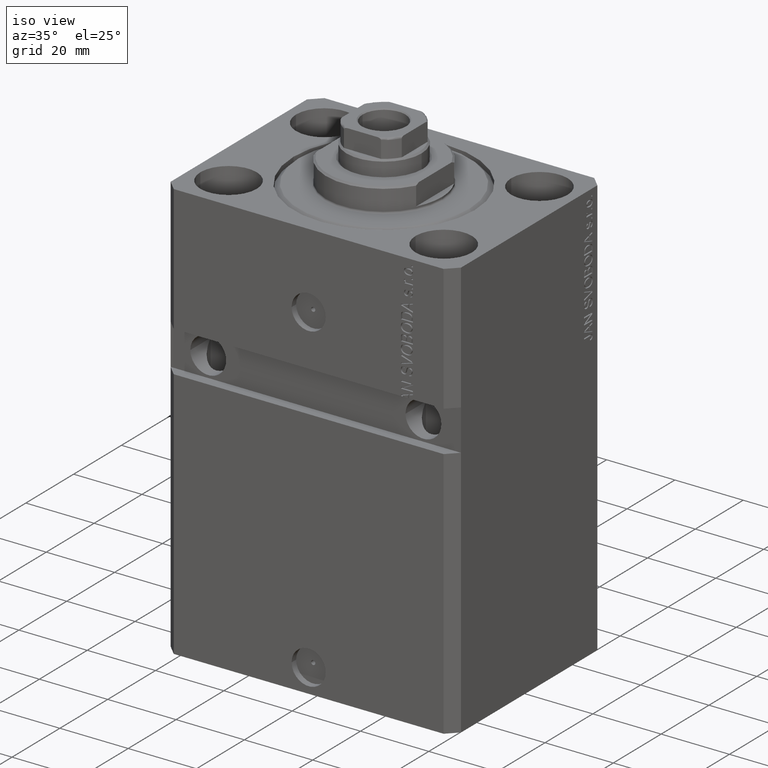
[diagram: clean part render]
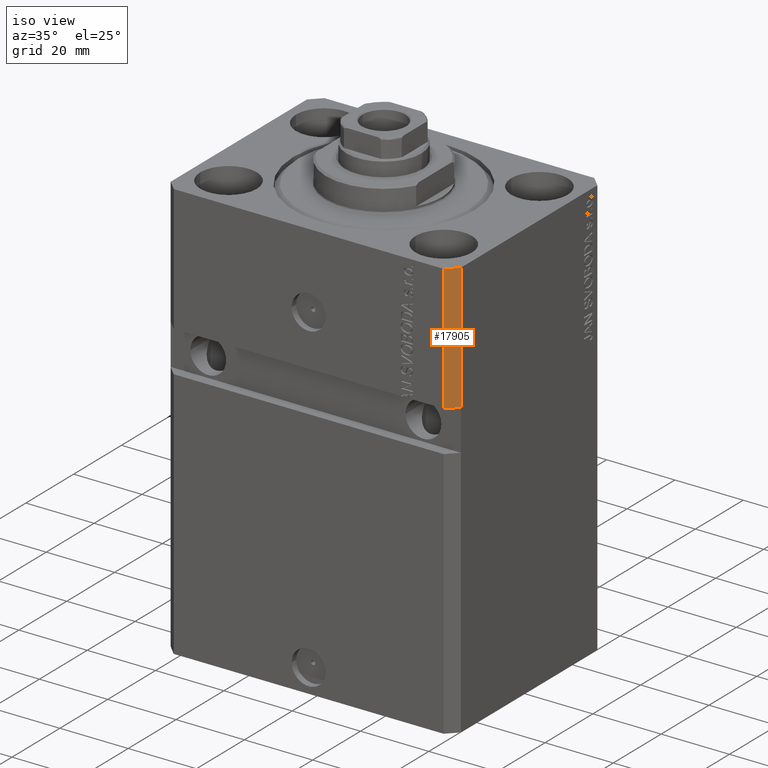
[diagram: same view with one face highlighted and labeled with its STEP entity id]
A machine part, iso view. The second image highlights one B-rep face of the part: STEP entity #17905.
In plain terms, the highlighted planar face has unit normal (0.7071, -0.7071, 0).
Its self-contained STEP definition (entity closure, byte-faithful):
#1461 = CARTESIAN_POINT ( 'NONE',  ( 39.50000000000000711, -31.50000000000000000, 0.000000000000000000 ) ) ;
#2010 = VERTEX_POINT ( 'NONE', #29735 ) ;
#3593 = EDGE_CURVE ( 'NONE', #5355, #2010, #35854, .T. ) ;
#5327 = CARTESIAN_POINT ( 'NONE',  ( 42.50000000000001421, -28.49999999999999289, -37.00000000000000000 ) ) ;
#5355 = VERTEX_POINT ( 'NONE', #5327 ) ;
#7978 = CARTESIAN_POINT ( 'NONE',  ( 39.50000000000000000, -31.50000000000000711, -37.00000000000000711 ) ) ;
#9326 = LINE ( 'NONE', #23135, #11917 ) ;
#10737 = ORIENTED_EDGE ( 'NONE', *, *, #41864, .F. ) ;
#11020 = EDGE_LOOP ( 'NONE', ( #15732, #21760, #17927, #10737 ) ) ;
#11917 = VECTOR ( 'NONE', #12713, 1000.000000000000000 ) ;
#11972 = PLANE ( 'NONE',  #36509 ) ;
#12713 = DIRECTION ( 'NONE',  ( 0.000000000000000000, 0.000000000000000000, 1.000000000000000000 ) ) ;
#14323 = EDGE_CURVE ( 'NONE', #5355, #23242, #9326, .T. ) ;
#15732 = ORIENTED_EDGE ( 'NONE', *, *, #3593, .F. ) ;
#15738 = LINE ( 'NONE', #1461, #16120 ) ;
#16120 = VECTOR ( 'NONE', #25946, 1000.000000000000000 ) ;
#17905 = ADVANCED_FACE ( 'NONE', ( #19449 ), #11972, .T. ) ;
#17927 = ORIENTED_EDGE ( 'NONE', *, *, #40226, .F. ) ;
#18314 = CARTESIAN_POINT ( 'NONE',  ( 39.50000000000000711, -31.50000000000000000, 0.000000000000000000 ) ) ;
#19449 = FACE_OUTER_BOUND ( 'NONE', #11020, .T. ) ;
#21760 = ORIENTED_EDGE ( 'NONE', *, *, #14323, .T. ) ;
#22015 = DIRECTION ( 'NONE',  ( -0.7071067811865483499, -0.7071067811865467956, -5.772398745160944892E-17 ) ) ;
#23135 = CARTESIAN_POINT ( 'NONE',  ( 42.50000000000000711, -28.50000000000000355, -123.0000000000000000 ) ) ;
#23206 = CARTESIAN_POINT ( 'NONE',  ( 42.50000000000000711, -28.50000000000000355, 0.000000000000000000 ) ) ;
#23242 = VERTEX_POINT ( 'NONE', #23206 ) ;
#25804 = DIRECTION ( 'NONE',  ( 0.7071067811865483499, 0.7071067811865467956, 0.000000000000000000 ) ) ;
#25946 = DIRECTION ( 'NONE',  ( 0.7071067811865483499, 0.7071067811865466846, 0.000000000000000000 ) ) ;
#27741 = VERTEX_POINT ( 'NONE', #18314 ) ;
#28736 = CARTESIAN_POINT ( 'NONE',  ( 39.50000000000000711, -31.50000000000000000, -123.0000000000000000 ) ) ;
#29184 = LINE ( 'NONE', #28736, #37156 ) ;
#29735 = CARTESIAN_POINT ( 'NONE',  ( 39.50000000000000711, -31.49999999999999289, -37.00000000000000000 ) ) ;
#35549 = DIRECTION ( 'NONE',  ( 0.000000000000000000, 0.000000000000000000, 1.000000000000000000 ) ) ;
#35854 = LINE ( 'NONE', #7978, #42754 ) ;
#36008 = DIRECTION ( 'NONE',  ( 0.7071067811865467956, -0.7071067811865483499, 0.000000000000000000 ) ) ;
#36509 = AXIS2_PLACEMENT_3D ( 'NONE', #43471, #36008, #25804 ) ;
#37156 = VECTOR ( 'NONE', #35549, 1000.000000000000000 ) ;
#40226 = EDGE_CURVE ( 'NONE', #27741, #23242, #15738, .T. ) ;
#41864 = EDGE_CURVE ( 'NONE', #2010, #27741, #29184, .T. ) ;
#42754 = VECTOR ( 'NONE', #22015, 1000.000000000000000 ) ;
#43471 = CARTESIAN_POINT ( 'NONE',  ( 39.50000000000000711, -31.50000000000000000, -123.0000000000000000 ) ) ;